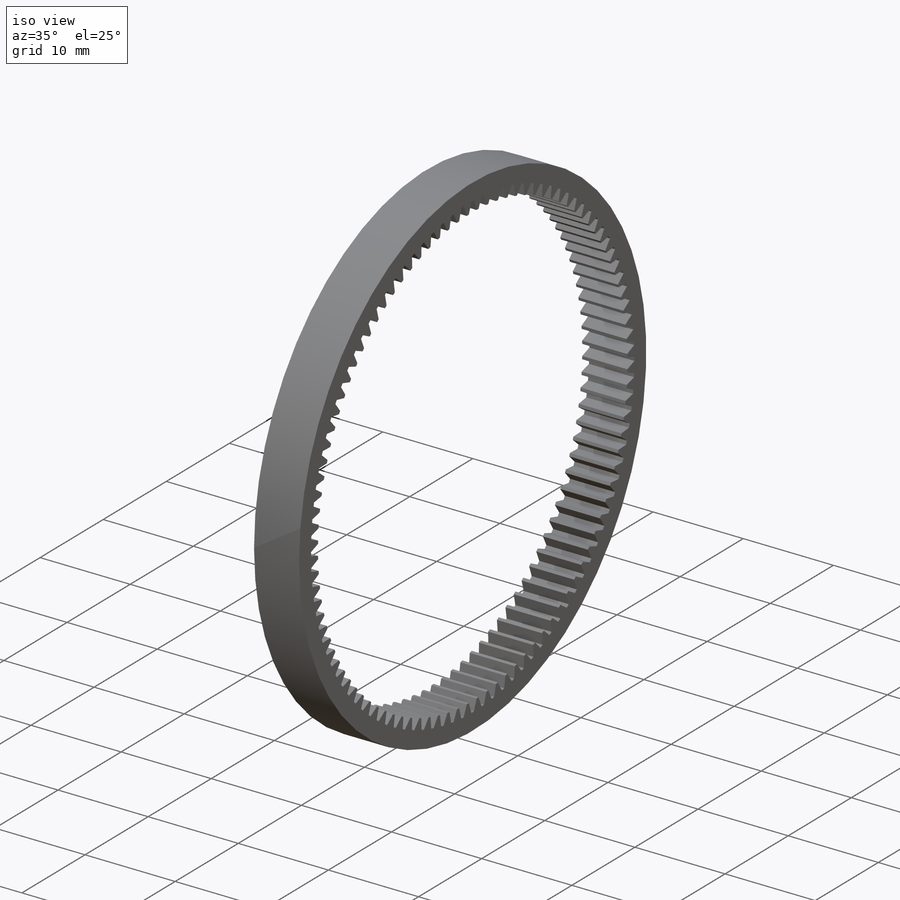
[diagram: iso view]
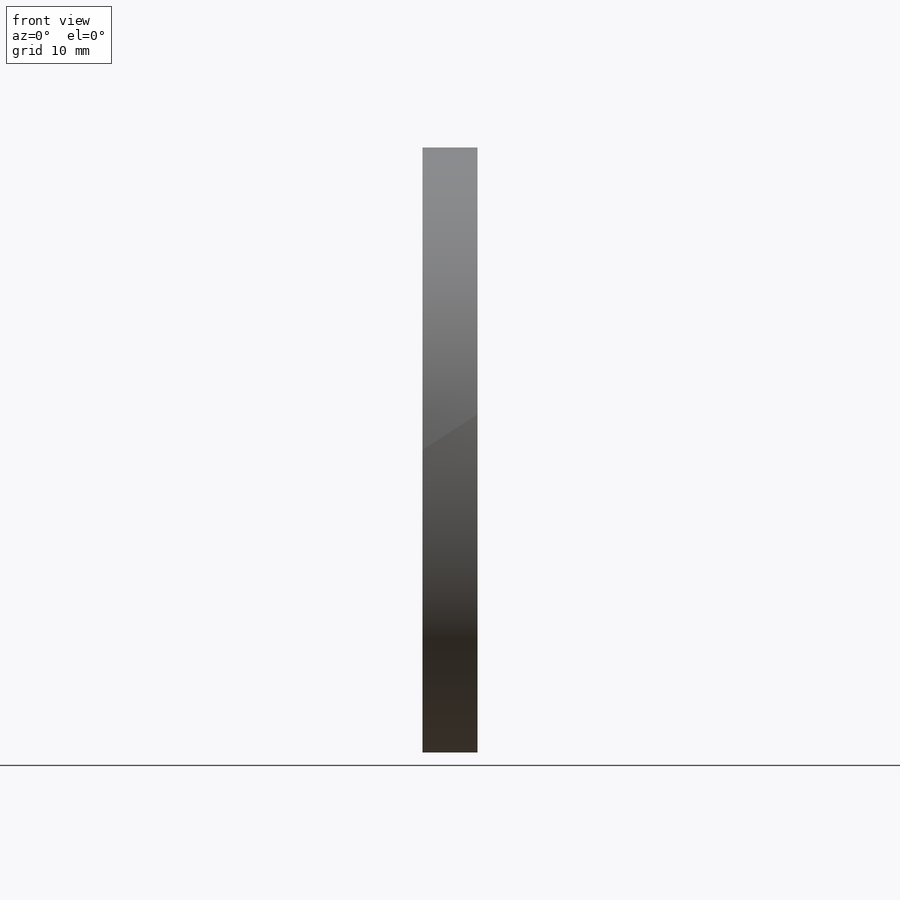
[diagram: front view]
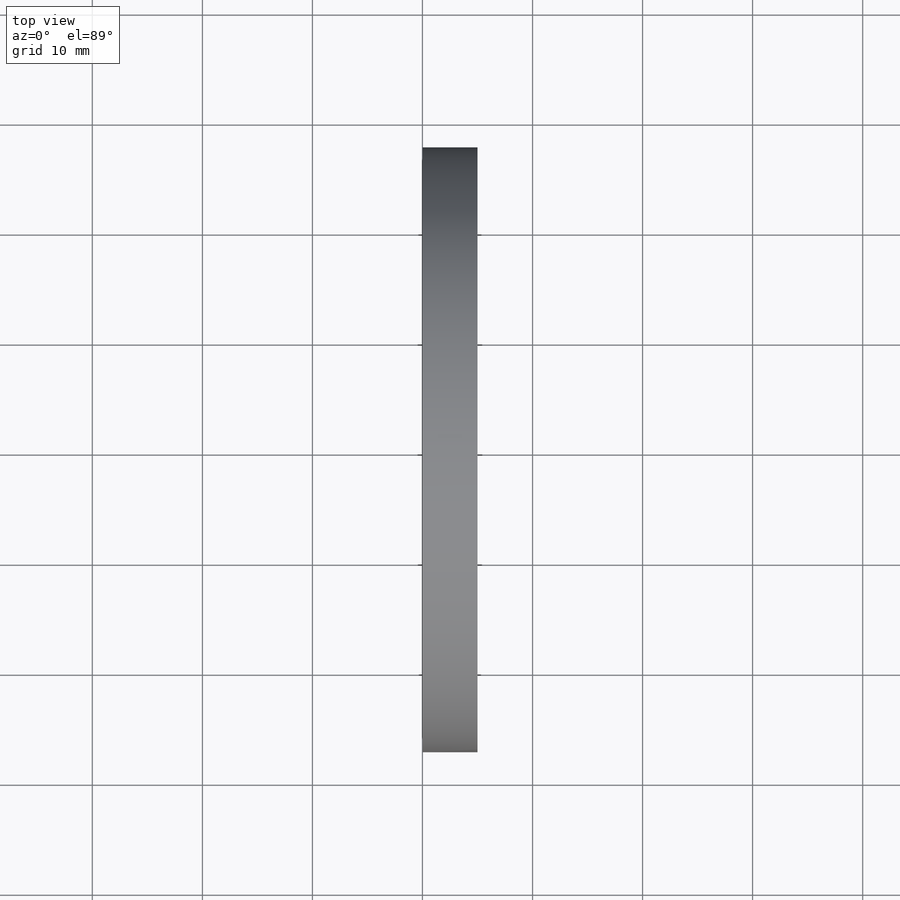
[diagram: top view]
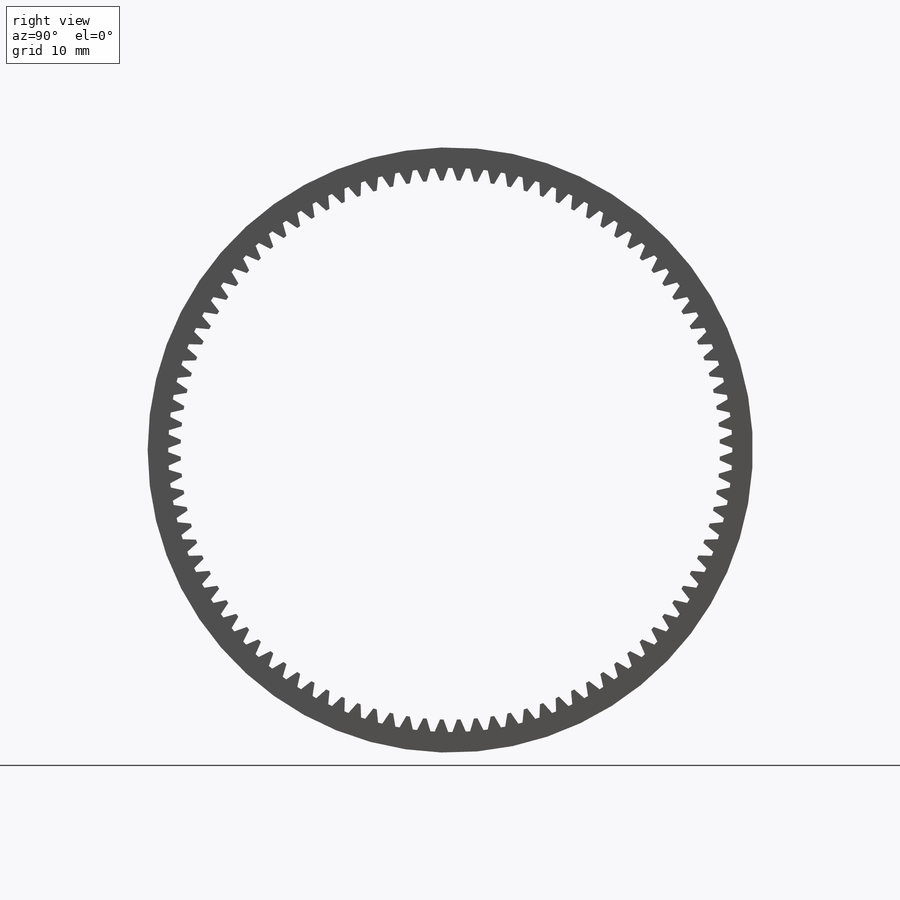
[diagram: right view]
SOLIDWORKS PART (.sldprt)
format: sldprt  version: not decoded by parser v0  size: 674,304 bytes
history: native  units: mm
features: plane x3, sketch x3, fillet x2, material x1, revolve x1, cut_extrude x1, pattern_circular x1 (+9 scaffold rows collapsed)
feature tree (21):
  scaffold x9  (default folders/planes/origin — collapsed)
  material  "1.0035 (S185)"
  plane  "Plane1"
  plane  "Plane2"
  plane  "Plane3"
  sketch  "HoldingSke"  dims[c1.Dr=15.875mm c1.MHD=25.4mm c1.Hub_dia=25.4mm c1.Diameter=55.0mm c1.Num_teeth=7.0mm c1.D1=115.0mm c2.Num_teeth=100.0deg c2.Pitch_radius=~46.415395mm c2.Pitch=2.0mm c2.Width=8.636mm c2.Chamfer_wid=3.175mm c2.Chamfer_dep=12.7mm c2.Overall_len=25.4mm c2.D1=115.0mm c2.Show_teeth=100.0deg c2.Thickness=12.7mm c2.OAL=~25.400051mm c2.T_dim=21.59mm c3.D1=115.0mm c3.Ap=20.0deg c3.H=19.05mm c3.Pitch_radius=~180.312849mm c3.Width=5.0mm c3.F=44.45mm c3.Backlash=0.019mm c3.Addendum_factor=~25.318689mm c3.Dedendum_factor=~11.91639mm c3.Fillet_factor=5.08mm c4.D1=~180.312849mm c4.Addendum_fac=1.0deg c5.D1=~180.312849mm c5.Dedendum_fac=1.25deg c6.D1=~180.312849mm c6.Clearance_fac=0.25deg c6.Dedendum_add=0.001mm c6.Module=0.5mm]
  sketch  "BasProSke"  dims[c1.D2=~57.067268mm c1.D3=~57.067268mm c1.Fillet_rad=0.635mm c1.D1=80.0mm c1.h=15.875mm c2.D2=15.875mm c2.G1=0.635mm c2.G2=0.635mm c2.H2=~13.49375mm c2.Diameter=~80.079479mm c2.H1=~13.49375mm c2.Thickness=5.0mm c3.Diameter=55.0mm c3.MHD=25.4mm c3.D2=12.7mm c4.MHD=25.4mm c4.MHD_radius=12.7mm c5.MHD_radius=12.7mm c5.D1=~92.83079mm c6.D1=45.0deg c6.D2=~92.83079mm c7.D2=45.0deg c7.Inside_diameter=49.0mm]
  revolve  "Base-Revolve"  Angle=360deg
  sketch  "TooCutSke"  dims[Pitch_dia=50.0mm Base_dia=~42.286168mm Root_dia=51.252mm Overcut_dia=48.9492mm Flank_rad=12.5mm Root_fillet=~1.58877mm D1=59.563mm Half_ang=1.8deg Half_CT=~0.440183mm]
  cut_extrude  "ToothCut"  [1 undecoded]
  fillet  "Breaks"  Radius=0.05mm Break_rad=0.05mm
  fillet  "RootFillets"  Radius=0.126mm
  pattern_circular  "TeethCuts"  Count=100 Angle=3.6deg Num_teeth=100
decode coverage: 7 of 8 modeling features carry decoded parameters
note: ~ marks probable driven/reference dimensions
note: 1 parameter value undecoded
note: suppression state not decoded; provenance and decode notes live in map.json
